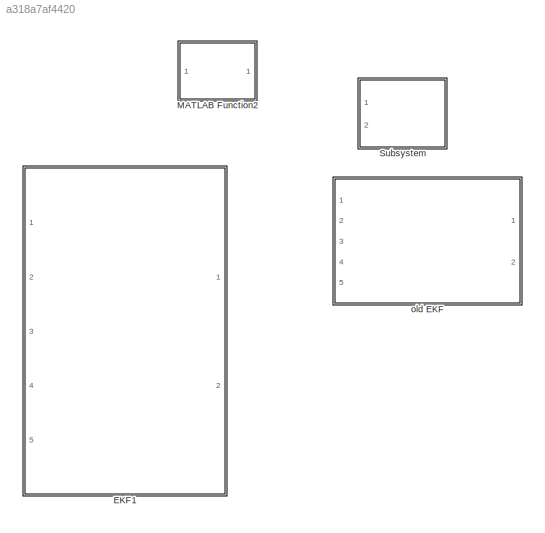
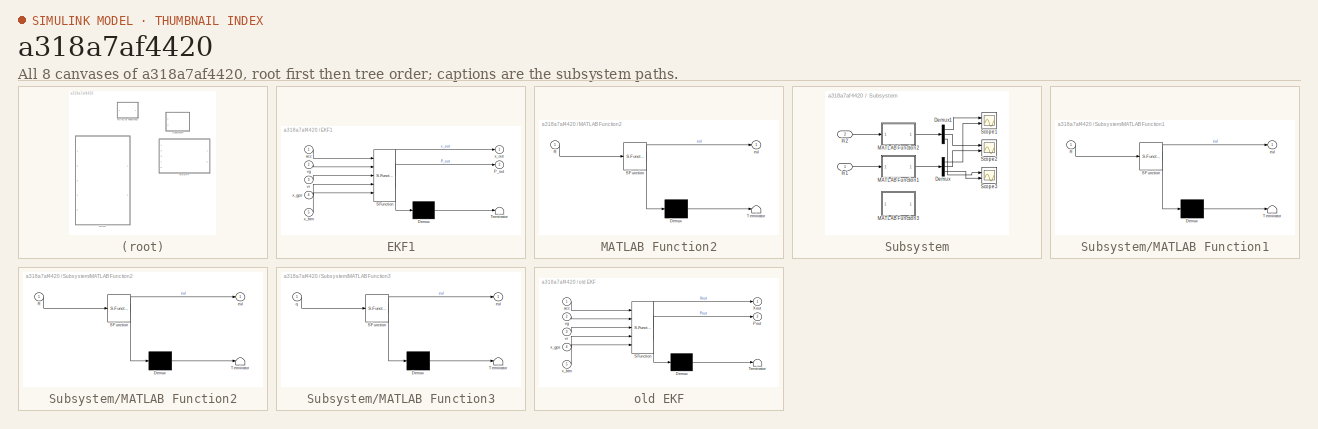
[diagram: thumbnail index - all 8 canvases of the model, root first then tree order]
MODEL slx_a318a7af4420
KIND model
CONFIG AbsTol = auto
CONFIG EnableMultiTasking = off
CONFIG FixedStep = auto
CONFIG MaxStep = auto
CONFIG MinStep = auto
CONFIG RelTol = 1e-3
CONFIG SampleTimeConstraint = Unconstrained
CONFIG Solver = VariableStepAuto
CONFIG SolverName = VariableStepAuto
CONFIG StartTime = 0.0
CONFIG StopTime = 10.0
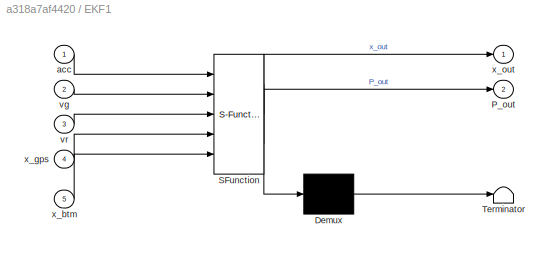
BLOCK [SubSystem] EKF1
  Commented = on
  ErrorFcn = Stateflow.Translate.translate
  PermitHierarchicalResolution = ExplicitOnly
  Ports = [5, 2]
  RequestExecContextInheritance = off
  SFBlockType = MATLAB Function
  SystemSampleTime = 1e-3
  TreatAsAtomicUnit = on
BLOCK [Demux] EKF1/ Demux 
  Outputs = 1
  Ports = [1, 1]
BLOCK [S-Function] EKF1/ SFunction 
  EnableBusSupport = on
  FunctionName = sf_sfun
  PortCounts = [5 3]
  Ports = [5, 3]
  SFcnIsStateOwnerBlock = off
  SFunctionDeploymentMode = off
  Tag = Stateflow S-Function Saved_model 1
BLOCK [Terminator] EKF1/ Terminator 
BLOCK [Outport] EKF1/P_out
  IconDisplay = Port number
  Port = 2
BLOCK [Inport] EKF1/acc
  IconDisplay = Port number
BLOCK [Inport] EKF1/vg
  IconDisplay = Port number
  Port = 2
BLOCK [Inport] EKF1/vr
  IconDisplay = Port number
  Port = 3
BLOCK [Inport] EKF1/x_btm
  IconDisplay = Port number
  Port = 5
BLOCK [Inport] EKF1/x_gps
  IconDisplay = Port number
  Port = 4
BLOCK [Outport] EKF1/x_out
  IconDisplay = Port number
BLOCK [SubSystem] MATLAB Function2
  Commented = on
  ErrorFcn = Stateflow.Translate.translate
  PermitHierarchicalResolution = ExplicitOnly
  Ports = [1, 1]
  RequestExecContextInheritance = off
  SFBlockType = MATLAB Function
  TreatAsAtomicUnit = on
BLOCK [Demux] MATLAB Function2/ Demux 
  Outputs = 1
  Ports = [1, 1]
BLOCK [S-Function] MATLAB Function2/ SFunction 
  EnableBusSupport = on
  FunctionName = sf_sfun
  PortCounts = [1 2]
  Ports = [1, 2]
  SFcnIsStateOwnerBlock = off
  SFunctionDeploymentMode = off
  Tag = Stateflow S-Function Saved_model 17
BLOCK [Terminator] MATLAB Function2/ Terminator 
BLOCK [Inport] MATLAB Function2/R
  IconDisplay = Port number
BLOCK [Outport] MATLAB Function2/eul
  IconDisplay = Port number
BLOCK [SubSystem] Subsystem
  Commented = on
  Ports = [2]
  RequestExecContextInheritance = off
BLOCK [Demux] Subsystem/Demux
  DisplayOption = bar
  Outputs = 3
  Ports = [1, 3]
BLOCK [Demux] Subsystem/Demux1
  DisplayOption = bar
  Outputs = 3
  Ports = [1, 3]
BLOCK [Inport] Subsystem/In1
  IconDisplay = Port number
BLOCK [Inport] Subsystem/In2
  IconDisplay = Port number
  Port = 2
BLOCK [SubSystem] Subsystem/MATLAB Function1
  ErrorFcn = Stateflow.Translate.translate
  PermitHierarchicalResolution = ExplicitOnly
  Ports = [1, 1]
  RequestExecContextInheritance = off
  SFBlockType = MATLAB Function
  TreatAsAtomicUnit = on
BLOCK [Demux] Subsystem/MATLAB Function1/ Demux 
  Outputs = 1
  Ports = [1, 1]
BLOCK [S-Function] Subsystem/MATLAB Function1/ SFunction 
  EnableBusSupport = on
  FunctionName = sf_sfun
  PortCounts = [1 2]
  Ports = [1, 2]
  SFcnIsStateOwnerBlock = off
  SFunctionDeploymentMode = off
  Tag = Stateflow S-Function Saved_model 23
BLOCK [Terminator] Subsystem/MATLAB Function1/ Terminator 
BLOCK [Inport] Subsystem/MATLAB Function1/R
  IconDisplay = Port number
BLOCK [Outport] Subsystem/MATLAB Function1/eul
  IconDisplay = Port number
BLOCK [SubSystem] Subsystem/MATLAB Function2
  ErrorFcn = Stateflow.Translate.translate
  PermitHierarchicalResolution = ExplicitOnly
  Ports = [1, 1]
  RequestExecContextInheritance = off
  SFBlockType = MATLAB Function
  TreatAsAtomicUnit = on
BLOCK [Demux] Subsystem/MATLAB Function2/ Demux 
  Outputs = 1
  Ports = [1, 1]
BLOCK [S-Function] Subsystem/MATLAB Function2/ SFunction 
  EnableBusSupport = on
  FunctionName = sf_sfun
  PortCounts = [1 2]
  Ports = [1, 2]
  SFcnIsStateOwnerBlock = off
  SFunctionDeploymentMode = off
  Tag = Stateflow S-Function Saved_model 25
BLOCK [Terminator] Subsystem/MATLAB Function2/ Terminator 
BLOCK [Inport] Subsystem/MATLAB Function2/R
  IconDisplay = Port number
BLOCK [Outport] Subsystem/MATLAB Function2/eul
  IconDisplay = Port number
BLOCK [SubSystem] Subsystem/MATLAB Function3
  Commented = on
  ErrorFcn = Stateflow.Translate.translate
  PermitHierarchicalResolution = ExplicitOnly
  Ports = [1, 1]
  RequestExecContextInheritance = off
  SFBlockType = MATLAB Function
  TreatAsAtomicUnit = on
BLOCK [Demux] Subsystem/MATLAB Function3/ Demux 
  Outputs = 1
  Ports = [1, 1]
BLOCK [S-Function] Subsystem/MATLAB Function3/ SFunction 
  EnableBusSupport = on
  FunctionName = sf_sfun
  PortCounts = [1 2]
  Ports = [1, 2]
  SFcnIsStateOwnerBlock = off
  SFunctionDeploymentMode = off
  Tag = Stateflow S-Function Saved_model 27
BLOCK [Terminator] Subsystem/MATLAB Function3/ Terminator 
BLOCK [Outport] Subsystem/MATLAB Function3/eul
  IconDisplay = Port number
BLOCK [Inport] Subsystem/MATLAB Function3/q
  IconDisplay = Port number
BLOCK [Scope] Subsystem/Scope1
  Floating = off
  NumInputPorts = 2
  Ports = [2]
  ScopeSpecificationString = Simulink.scopes.TimeScopeBlockCfg('CurrentConfiguration', extmgr.ConfigurationSet(extmgr.Configuration('Core','General UI',true),extmgr.Configuration('Core','Source UI',true),extmgr.Configuration('Sources','WiredSimulink',true,'DataLoggingVariableName','ScopeData5'),extmgr.Configuration('Visuals','Time Domain',true,'SerializedDisplays',{struct('MinYLimReal','-3.35901','MaxYLimReal','3.50558','YLab...<+1421ch>
BLOCK [Scope] Subsystem/Scope2
  Floating = off
  NumInputPorts = 2
  Ports = [2]
  ScopeSpecificationString = Simulink.scopes.TimeScopeBlockCfg('CurrentConfiguration', extmgr.ConfigurationSet(extmgr.Configuration('Core','General UI',true),extmgr.Configuration('Core','Source UI',true),extmgr.Configuration('Sources','WiredSimulink',true,'DataLoggingVariableName','ScopeData6'),extmgr.Configuration('Visuals','Time Domain',true,'SerializedDisplays',{struct('MinYLimReal','-0.05939','MaxYLimReal','0.07038','YLab...<+1421ch>
BLOCK [Scope] Subsystem/Scope3
  Floating = off
  NumInputPorts = 2
  Ports = [2]
  ScopeSpecificationString = Simulink.scopes.TimeScopeBlockCfg('CurrentConfiguration', extmgr.ConfigurationSet(extmgr.Configuration('Core','General UI',true),extmgr.Configuration('Core','Source UI',true),extmgr.Configuration('Sources','WiredSimulink',true,'DataLoggingVariableName','ScopeData7'),extmgr.Configuration('Visuals','Time Domain',true,'SerializedDisplays',{struct('MinYLimReal','-0.03934','MaxYLimReal','0.04147','YLab...<+1421ch>
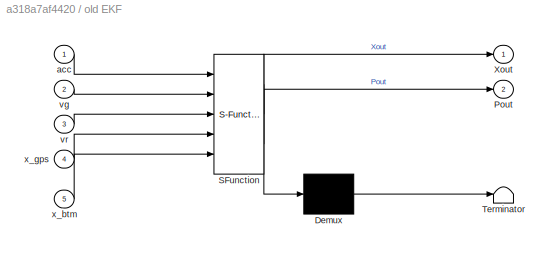
BLOCK [SubSystem] old EKF
  Commented = on
  ErrorFcn = Stateflow.Translate.translate
  PermitHierarchicalResolution = ExplicitOnly
  Ports = [5, 2]
  RequestExecContextInheritance = off
  SFBlockType = MATLAB Function
  SystemSampleTime = 1e-3
  TreatAsAtomicUnit = on
BLOCK [Demux] old EKF/ Demux 
  Outputs = 1
  Ports = [1, 1]
BLOCK [S-Function] old EKF/ SFunction 
  EnableBusSupport = on
  FunctionName = sf_sfun
  PortCounts = [5 3]
  Ports = [5, 3]
  SFcnIsStateOwnerBlock = off
  SFunctionDeploymentMode = off
  Tag = Stateflow S-Function Saved_model 28
BLOCK [Terminator] old EKF/ Terminator 
BLOCK [Outport] old EKF/Pout
  IconDisplay = Port number
  Port = 2
BLOCK [Outport] old EKF/Xout
  IconDisplay = Port number
BLOCK [Inport] old EKF/acc
  IconDisplay = Port number
BLOCK [Inport] old EKF/vg
  IconDisplay = Port number
  Port = 2
BLOCK [Inport] old EKF/vr
  IconDisplay = Port number
  Port = 3
BLOCK [Inport] old EKF/x_btm
  IconDisplay = Port number
  Port = 5
BLOCK [Inport] old EKF/x_gps
  IconDisplay = Port number
  Port = 4
LINE Subsystem/Demux1:1 -> Subsystem/Scope1:1
LINE Subsystem/Demux1:2 -> Subsystem/Scope2:1
LINE Subsystem/Demux1:3 -> Subsystem/Scope3:1
LINE Subsystem/Demux:1 -> Subsystem/Scope1:2
LINE Subsystem/Demux:2 -> Subsystem/Scope2:2
LINE Subsystem/Demux:3 -> Subsystem/Scope3:2
LINE Subsystem/In1:1 -> Subsystem/MATLAB Function1:1
LINE Subsystem/In2:1 -> Subsystem/MATLAB Function2:1
LINE Subsystem/MATLAB Function1:1 -> Subsystem/Demux:1
LINE Subsystem/MATLAB Function2:1 -> Subsystem/Demux1:1
CHART EKF1 states=1 transitions=1
  STATE_LABEL 'eML_blk_kernel()'
  STATE_LABEL 'SCRIPT:\nfunction [x_out, P_out] = fcn(acc, vg, vr, x_gps, x_btm)\n% 状态: x=[ x; v; b_a; s_w ], 位置/速度/加速度零偏/轮速尺度(≈1+ε)\n% 缺测用 NaN；兼容旧工程，位置=0/速度=0 也可视为缺测，但做了低速保护避免误杀真零速\n\ndt = 1e-3;\n\npersistent x P inited\nif isempty(inited)\n    x = [0; 0; 0; 1.0];\n    P = diag([100, 10, 0.1, 1e-2]);\n    inited = true;\nend\n\n% ---------- 观测缺测兼容层 ----------\n% 优先 isnan；保留兼容\nif nargin < 5, x_btm = NaN; end\nif nargin < 4, x_g...<+2527ch>'
CHART MATLAB Function2 states=1 transitions=1
  STATE_LABEL 'eML_blk_kernel()'
  STATE_LABEL "SCRIPT:\n function eul = deg(R)\n[U, ~, V] = svd(R);\nR = U * V';\nyaw = atan2(R(2,1),R(1,1));\npitch = asin(-R(3,1));\nroll = atan2(R(3,2),R(3,3));\neul = [yaw, pitch, roll]*180/pi;\n\n"
CHART Subsystem/MATLAB Function1 states=1 transitions=1
  STATE_LABEL 'eML_blk_kernel()'
  STATE_LABEL "SCRIPT:\n function eul = rad(R)\n[U, ~, V] = svd(R);\nR = U * V';\nyaw = atan2(R(2,1),R(1,1));\npitch = asin(-R(3,1));\nroll = atan2(R(3,2),R(3,3));\neul = [yaw, pitch, roll];\n\n"
CHART Subsystem/MATLAB Function2 states=1 transitions=1
  STATE_LABEL 'eML_blk_kernel()'
  STATE_LABEL "SCRIPT:\n function eul = rad(R)\n[U, ~, V] = svd(R);\nR = U * V';\nyaw = atan2(R(2,1),R(1,1));\npitch = asin(-R(3,1));\nroll = atan2(R(3,2),R(3,3));\neul = [yaw, pitch, roll];\n\n"
CHART Subsystem/MATLAB Function3 states=1 transitions=1
  STATE_LABEL 'eML_blk_kernel()'
  STATE_LABEL 'SCRIPT:\nfunction eul = q2eul(q)\n% 输入 q = [qw qx qy qz]，Hamilton 定义（qw 是实部）\n% 输出 yaw(Z)、pitch(Y)、roll(X)，单位 rad\n\n    % 拆分\n    qw = q(1); qx = q(2); qy = q(3); qz = q(4);\n\n    % 旋转矩阵\n    R = [ 1 - 2*(qy^2 + qz^2),   2*(qx*qy - qz*qw),   2*(qx*qz + qy*qw);\n          2*(qx*qy + qz*qw),     1 - 2*(qx^2 + qz^2), 2*(qy*qz - qx*qw);\n          2*(qx*qz - qy*qw),     2*(qy*qz + qx*qw),   1 - 2*(qx^2 + qy^2)...<+198ch>'
CHART old EKF states=1 transitions=1
  STATE_LABEL 'eML_blk_kernel()'
  STATE_LABEL 'SCRIPT:\nfunction [Xout, Pout] = fcn(acc, vg, vr, x_gps, x_btm)\ndt = 1e-3;\nif isnan(acc)\n    acc = [0;0;0];\nend\n\n% 状态空间为: xs vs vx vy vz vgb\n% vgb为轮径补偿\npersistent X0 X1 P0 P1;\nif isempty(X0)\n    X0 = [0;0;0;0;0;0];\n    X1 = [0;0;0;0;0;0];\n    P0 = diag([100, 10, 10, 10, 10, 1]);\n    P1 = diag([100, 10, 10, 10, 10, 1]);\nend\n\n% 协方差\nRa = diag([0,0,0.5,0.5,0.5,0]);\nQ = eye(6)*0.1;\nZ_org = [x_gps; x_btm...<+850ch>'
